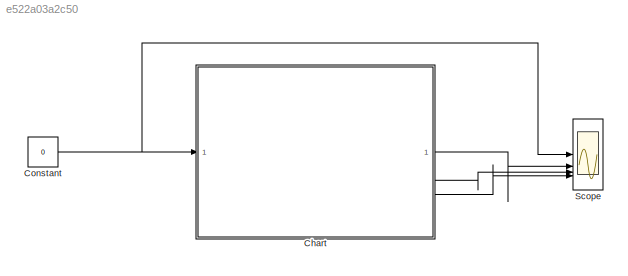
MODEL slx_e522a03a2c50
KIND model
CONFIG AbsTol = auto
CONFIG EnableMultiTasking = off
CONFIG FixedStep = auto
CONFIG MaxStep = auto
CONFIG MinStep = auto
CONFIG RelTol = 1e-3
CONFIG SampleTimeConstraint = Unconstrained
CONFIG SolverName = VariableStepAuto
CONFIG StartTime = 0.0
CONFIG StopTime = 1000
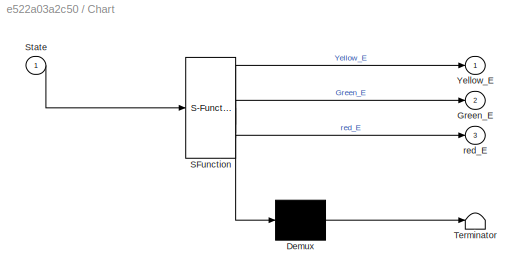
BLOCK [SubSystem] Chart
  ErrorFcn = Stateflow.Translate.translate
  PermitHierarchicalResolution = ExplicitOnly
  SFBlockType = Chart
  TreatAsAtomicUnit = on
BLOCK [Demux] Chart/ Demux 
  Outputs = 1
BLOCK [S-Function] Chart/ SFunction 
  EnableBusSupport = on
  FunctionName = sf_sfun
  PortCounts = [1 4]
  SFcnIsStateOwnerBlock = off
  SFunctionDeploymentMode = off
  Tag = Stateflow S-Function 3
BLOCK [Terminator] Chart/ Terminator 
BLOCK [Outport] Chart/Green_E
  Port = 2
BLOCK [Inport] Chart/State
BLOCK [Outport] Chart/Yellow_E
BLOCK [Outport] Chart/red_E
  Port = 3
BLOCK [Constant] Constant
  Value = 0
BLOCK [Scope] Scope
  Floating = off
  NumInputPorts = 4
  ScopeSpecificationString = Simulink.scopes.TimeScopeBlockCfg('CurrentConfiguration', extmgr.ConfigurationSet(extmgr.Configuration('Core','General UI',true),extmgr.Configuration('Core','Source UI',true),extmgr.Configuration('Sources','WiredSimulink',true),extmgr.Configuration('Visuals','Time Domain',true,'SerializedDisplays',{struct('MinYLimReal','-1.00000','MaxYLimReal','1.00000','YLabelReal','','MinYLimMag','0.00000','MaxY...<+3723ch>
LINE Chart:1 -> Scope:2
LINE Chart:2 -> Scope:3
LINE Chart:3 -> Scope:4
NET Constant:1 -> Chart:1, Scope:1
note: NET lines group one-source signal fan-out (src -> all destinations, sorted); 1:1 wires keep LINE
CHART Chart states=7 transitions=11
  STATE_LABEL 'Normal_S'
  STATE_LABEL 'StopS\nen:\nred_E=1;\nYellow_E=0;\nGreen_E=0;\n'
  STATE_LABEL 'ReadyS\nen:\nYellow_E=1;\nred_E=0;\nGreen_E=0;\n'
  STATE_LABEL 'GoS\nen:\nGreen_E=1;\nred_E=0;\nYellow_E=0;\n'
  STATE_LABEL 'after(5,sec)'
  STATE_LABEL 'after(120,sec)'
  STATE_LABEL 'after(40,sec)'
  STATE_LABEL 'after(5,sec)'
  STATE_LABEL 'StopS\nen:\nred_E=1;\nYellow_E=0;\nGreen_E=0;\n'
  STATE_LABEL 'ReadyS\nen:\nYellow_E=1;\nred_E=0;\nGreen_E=0;\n'
  STATE_LABEL 'GoS\nen:\nGreen_E=1;\nred_E=0;\nYellow_E=0;\n'
  STATE_LABEL 'Fault_S\n'
  STATE_LABEL 'LedON\nen:\nred_E=1;'
  STATE_LABEL 'LedOff\nen:\nred_E=0;\n'
  STATE_LABEL 'after(1,msec)'
  STATE_LABEL 'after(1,msec)'
  STATE_LABEL 'LedON\nen:\nred_E=1;'
  STATE_LABEL 'LedOff\nen:\nred_E=0;\n'
CHART  states=0 transitions=0
